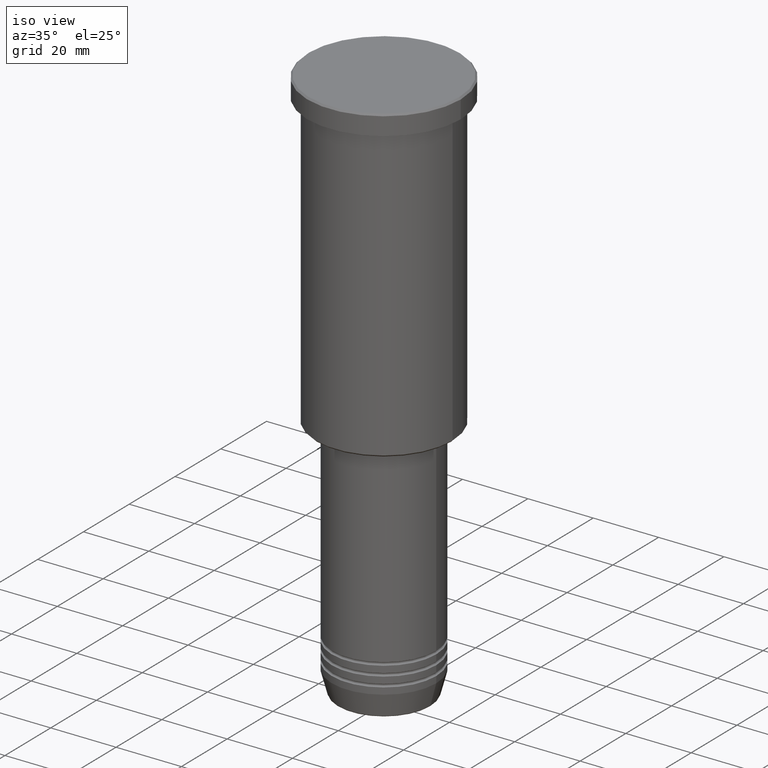
[diagram: clean part render]
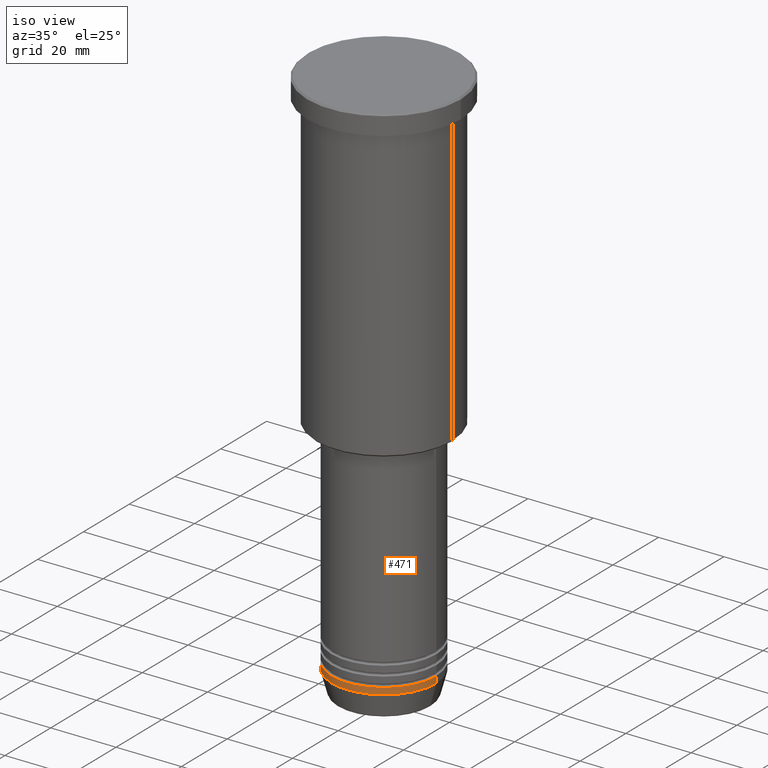
[diagram: same view with one face highlighted and labeled with its STEP entity id]
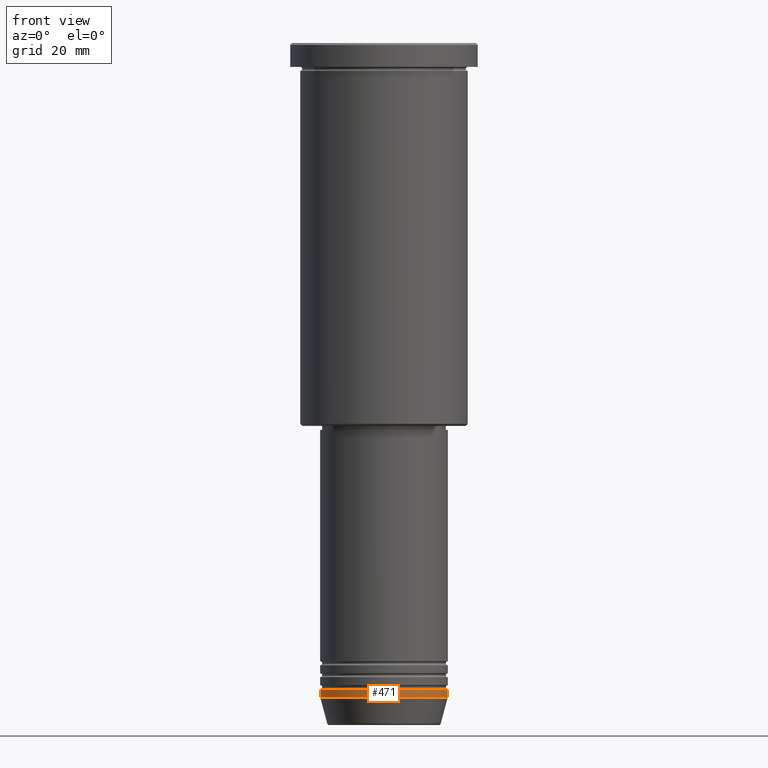
[diagram: same view with one face highlighted and labeled with its STEP entity id]
A machine part, iso view. The second image highlights one B-rep face of the part: STEP entity #471.
A second angle (front view) of the same face is appended — the face is thin or edge-on in the first view.
In plain terms, the highlighted cylindrical surface (partial cylindrical patch) has radius 16 mm, axis along (-0, -0, 1).
Its self-contained STEP definition (entity closure, byte-faithful):
#57 = LINE ( 'NONE', #950, #263 ) ;
#74 = EDGE_LOOP ( 'NONE', ( #433, #186, #220, #473 ) ) ;
#80 = DIRECTION ( 'NONE',  ( -0.000000000000000000, -0.000000000000000000, 1.000000000000000000 ) ) ;
#120 = DIRECTION ( 'NONE',  ( -0.000000000000000000, -0.000000000000000000, 1.000000000000000000 ) ) ;
#186 = ORIENTED_EDGE ( 'NONE', *, *, #938, .T. ) ;
#203 = LINE ( 'NONE', #572, #1181 ) ;
#220 = ORIENTED_EDGE ( 'NONE', *, *, #246, .T. ) ;
#246 = EDGE_CURVE ( 'NONE', #1146, #432, #57, .T. ) ;
#251 = CARTESIAN_POINT ( 'NONE',  ( 0.000000000000000000, 0.000000000000000000, -162.0000000000000000 ) ) ;
#263 = VECTOR ( 'NONE', #948, 1000.000000000000000 ) ;
#282 = FACE_OUTER_BOUND ( 'NONE', #74, .T. ) ;
#292 = CARTESIAN_POINT ( 'NONE',  ( -16.00000000000000000, 1.959434878635765131E-15, -162.0000000000000000 ) ) ;
#300 = CYLINDRICAL_SURFACE ( 'NONE', #1134, 16.00000000000000000 ) ;
#315 = VERTEX_POINT ( 'NONE', #903 ) ;
#345 = DIRECTION ( 'NONE',  ( 1.000000000000000000, 0.000000000000000000, 0.000000000000000000 ) ) ;
#371 = CARTESIAN_POINT ( 'NONE',  ( 16.00000000000000000, 0.000000000000000000, -162.0000000000000000 ) ) ;
#388 = CARTESIAN_POINT ( 'NONE',  ( 16.00000000000000000, 0.000000000000000000, -164.0000000000000000 ) ) ;
#432 = VERTEX_POINT ( 'NONE', #371 ) ;
#433 = ORIENTED_EDGE ( 'NONE', *, *, #515, .F. ) ;
#471 = ADVANCED_FACE ( 'NONE', ( #282 ), #300, .T. ) ;
#473 = ORIENTED_EDGE ( 'NONE', *, *, #1086, .F. ) ;
#484 = DIRECTION ( 'NONE',  ( -0.000000000000000000, -0.000000000000000000, 1.000000000000000000 ) ) ;
#488 = VERTEX_POINT ( 'NONE', #292 ) ;
#515 = EDGE_CURVE ( 'NONE', #315, #488, #203, .T. ) ;
#572 = CARTESIAN_POINT ( 'NONE',  ( -16.00000000000000000, 1.959434878635765131E-15, 0.000000000000000000 ) ) ;
#586 = AXIS2_PLACEMENT_3D ( 'NONE', #869, #80, #724 ) ;
#631 = CARTESIAN_POINT ( 'NONE',  ( 0.000000000000000000, 0.000000000000000000, 0.000000000000000000 ) ) ;
#655 = CIRCLE ( 'NONE', #836, 16.00000000000000000 ) ;
#694 = DIRECTION ( 'NONE',  ( -0.000000000000000000, -0.000000000000000000, 1.000000000000000000 ) ) ;
#724 = DIRECTION ( 'NONE',  ( 1.000000000000000000, 0.000000000000000000, 0.000000000000000000 ) ) ;
#792 = CIRCLE ( 'NONE', #586, 16.00000000000000000 ) ;
#836 = AXIS2_PLACEMENT_3D ( 'NONE', #251, #694, #345 ) ;
#869 = CARTESIAN_POINT ( 'NONE',  ( 0.000000000000000000, 0.000000000000000000, -164.0000000000000000 ) ) ;
#903 = CARTESIAN_POINT ( 'NONE',  ( -16.00000000000000000, 1.959434878635765131E-15, -164.0000000000000000 ) ) ;
#917 = DIRECTION ( 'NONE',  ( 1.000000000000000000, 0.000000000000000000, 0.000000000000000000 ) ) ;
#938 = EDGE_CURVE ( 'NONE', #315, #1146, #792, .T. ) ;
#948 = DIRECTION ( 'NONE',  ( -0.000000000000000000, -0.000000000000000000, 1.000000000000000000 ) ) ;
#950 = CARTESIAN_POINT ( 'NONE',  ( 16.00000000000000000, 0.000000000000000000, 0.000000000000000000 ) ) ;
#1086 = EDGE_CURVE ( 'NONE', #488, #432, #655, .T. ) ;
#1134 = AXIS2_PLACEMENT_3D ( 'NONE', #631, #484, #917 ) ;
#1146 = VERTEX_POINT ( 'NONE', #388 ) ;
#1181 = VECTOR ( 'NONE', #120, 1000.000000000000000 ) ;